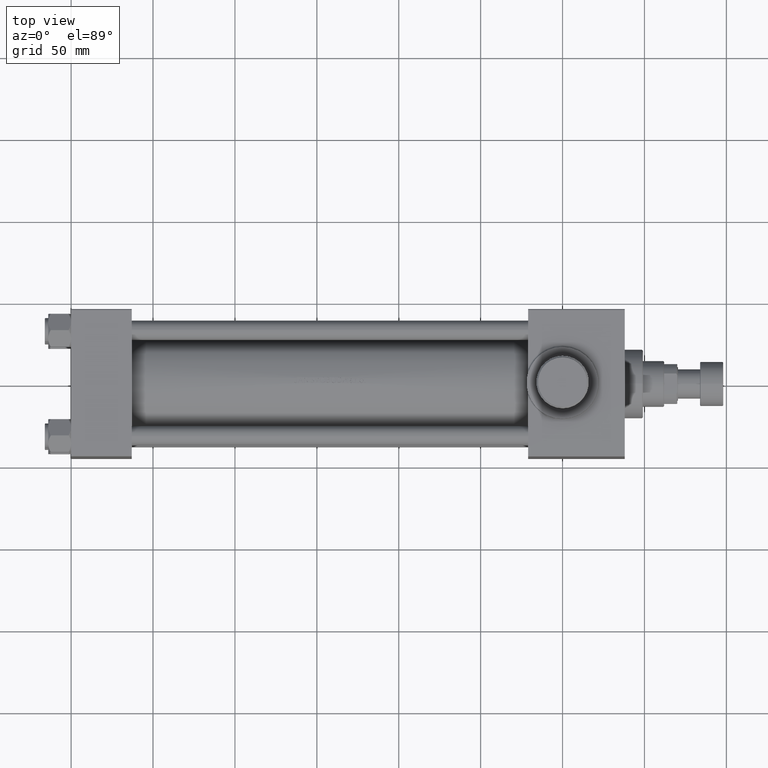
[diagram: clean part render]
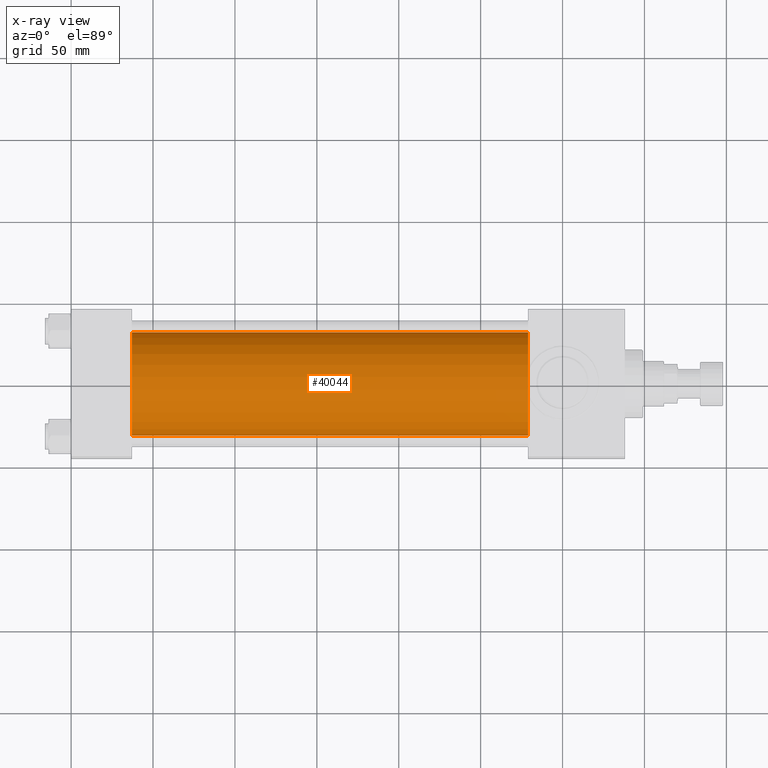
[diagram: x-ray — body ghosted, one internal face saturated and labeled with its STEP entity id]
A machine part, top view, then the same camera in x-ray: the body is ghosted and one INTERNAL B-rep face — a face not visible from any outside direction — is saturated and labeled: STEP entity #40044.
In plain terms, the highlighted cylindrical surface (partial cylindrical patch) has radius 31.5 mm, axis along (-1, -0, 0).
Its self-contained STEP definition (entity closure, byte-faithful):
#3327 = EDGE_CURVE ( 'NONE', #18610, #36839, #8021, .T. ) ;
#5243 = ORIENTED_EDGE ( 'NONE', *, *, #3327, .F. ) ;
#5594 = DIRECTION ( 'NONE',  ( -1.000000000000000000, -0.000000000000000000, -0.000000000000000000 ) ) ;
#6986 = VECTOR ( 'NONE', #5594, 1000.000000000000000 ) ;
#7085 = CARTESIAN_POINT ( 'NONE',  ( 278.9999999999999432, -3.469446951953614189E-15, 31.50000000000000000 ) ) ;
#7357 = EDGE_CURVE ( 'NONE', #8721, #13800, #38212, .T. ) ;
#8021 = LINE ( 'NONE', #7085, #39555 ) ;
#8696 = CARTESIAN_POINT ( 'NONE',  ( 278.9999999999999432, 3.881904653605483521E-16, -31.50000000000000000 ) ) ;
#8721 = VERTEX_POINT ( 'NONE', #14859 ) ;
#9345 = EDGE_CURVE ( 'NONE', #18610, #8721, #42808, .T. ) ;
#10225 = CARTESIAN_POINT ( 'NONE',  ( 37.00000000000000000, -3.469446951953614189E-15, 0.000000000000000000 ) ) ;
#12069 = CIRCLE ( 'NONE', #31072, 31.50000000000000000 ) ;
#12135 = AXIS2_PLACEMENT_3D ( 'NONE', #41842, #45645, #34485 ) ;
#13800 = VERTEX_POINT ( 'NONE', #15174 ) ;
#14859 = CARTESIAN_POINT ( 'NONE',  ( 278.9999999999999432, 3.881904653605483521E-16, -31.50000000000000000 ) ) ;
#15174 = CARTESIAN_POINT ( 'NONE',  ( 37.00000000000000000, 3.881904653605483521E-16, -31.50000000000000000 ) ) ;
#16113 = ORIENTED_EDGE ( 'NONE', *, *, #7357, .T. ) ;
#17112 = FACE_OUTER_BOUND ( 'NONE', #17450, .T. ) ;
#17450 = EDGE_LOOP ( 'NONE', ( #45994, #16113, #25959, #5243 ) ) ;
#18610 = VERTEX_POINT ( 'NONE', #27962 ) ;
#22550 = DIRECTION ( 'NONE',  ( -1.000000000000000000, -0.000000000000000000, -0.000000000000000000 ) ) ;
#25959 = ORIENTED_EDGE ( 'NONE', *, *, #37043, .F. ) ;
#27015 = DIRECTION ( 'NONE',  ( 1.000000000000000000, 0.000000000000000000, 0.000000000000000000 ) ) ;
#27496 = DIRECTION ( 'NONE',  ( 0.000000000000000000, 0.000000000000000000, -1.000000000000000000 ) ) ;
#27618 = DIRECTION ( 'NONE',  ( 0.000000000000000000, 0.000000000000000000, -1.000000000000000000 ) ) ;
#27962 = CARTESIAN_POINT ( 'NONE',  ( 278.9999999999999432, -3.469446951953614189E-15, 31.50000000000000000 ) ) ;
#29131 = AXIS2_PLACEMENT_3D ( 'NONE', #44859, #27015, #27496 ) ;
#31072 = AXIS2_PLACEMENT_3D ( 'NONE', #10225, #31187, #27618 ) ;
#31141 = CYLINDRICAL_SURFACE ( 'NONE', #12135, 31.50000000000000000 ) ;
#31187 = DIRECTION ( 'NONE',  ( 1.000000000000000000, 0.000000000000000000, 0.000000000000000000 ) ) ;
#34485 = DIRECTION ( 'NONE',  ( 0.000000000000000000, 0.000000000000000000, 1.000000000000000000 ) ) ;
#36839 = VERTEX_POINT ( 'NONE', #40032 ) ;
#37043 = EDGE_CURVE ( 'NONE', #36839, #13800, #12069, .T. ) ;
#38212 = LINE ( 'NONE', #8696, #6986 ) ;
#39555 = VECTOR ( 'NONE', #22550, 1000.000000000000000 ) ;
#40032 = CARTESIAN_POINT ( 'NONE',  ( 37.00000000000000000, -3.469446951953614189E-15, 31.50000000000000000 ) ) ;
#40044 = ADVANCED_FACE ( 'NONE', ( #17112 ), #31141, .F. ) ;
#41842 = CARTESIAN_POINT ( 'NONE',  ( 278.9999999999999432, -3.469446951953614189E-15, 0.000000000000000000 ) ) ;
#42808 = CIRCLE ( 'NONE', #29131, 31.50000000000000000 ) ;
#44859 = CARTESIAN_POINT ( 'NONE',  ( 278.9999999999999432, -3.469446951953614189E-15, 0.000000000000000000 ) ) ;
#45645 = DIRECTION ( 'NONE',  ( -1.000000000000000000, -0.000000000000000000, -0.000000000000000000 ) ) ;
#45994 = ORIENTED_EDGE ( 'NONE', *, *, #9345, .T. ) ;